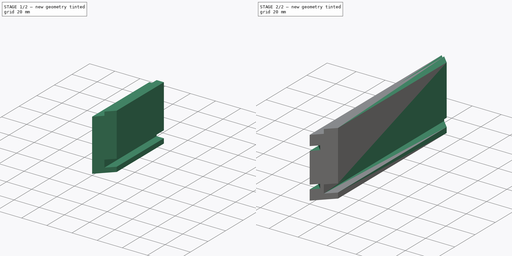
[diagram: build sequence overview — one tinted view per stage of 2, left to right]
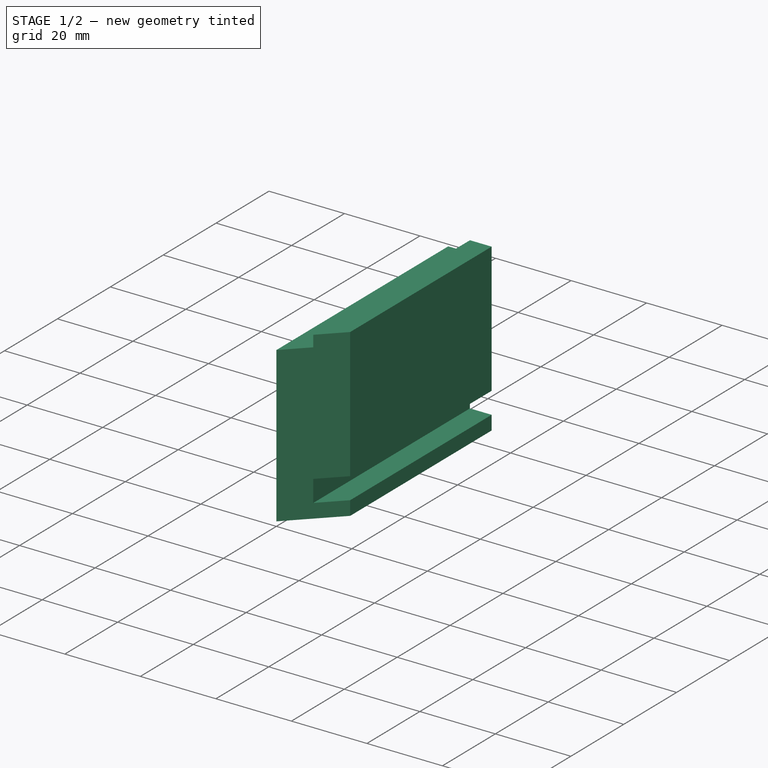
[diagram: stage 1 of 2 — iso view after this stage's code; geometry added in this stage tinted green]
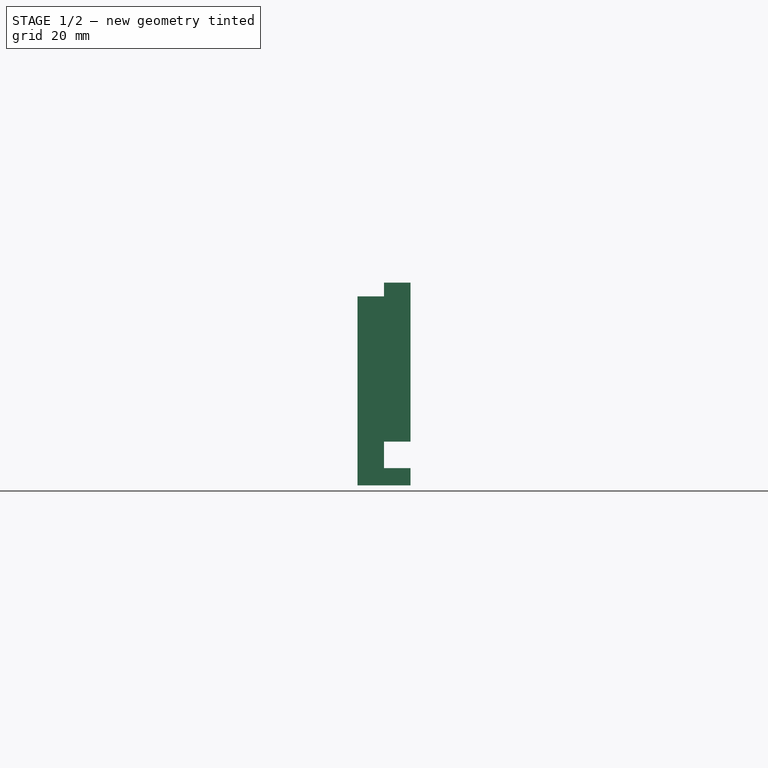
[diagram: stage 1 of 2 — front view after this stage's code; geometry added in this stage tinted green]
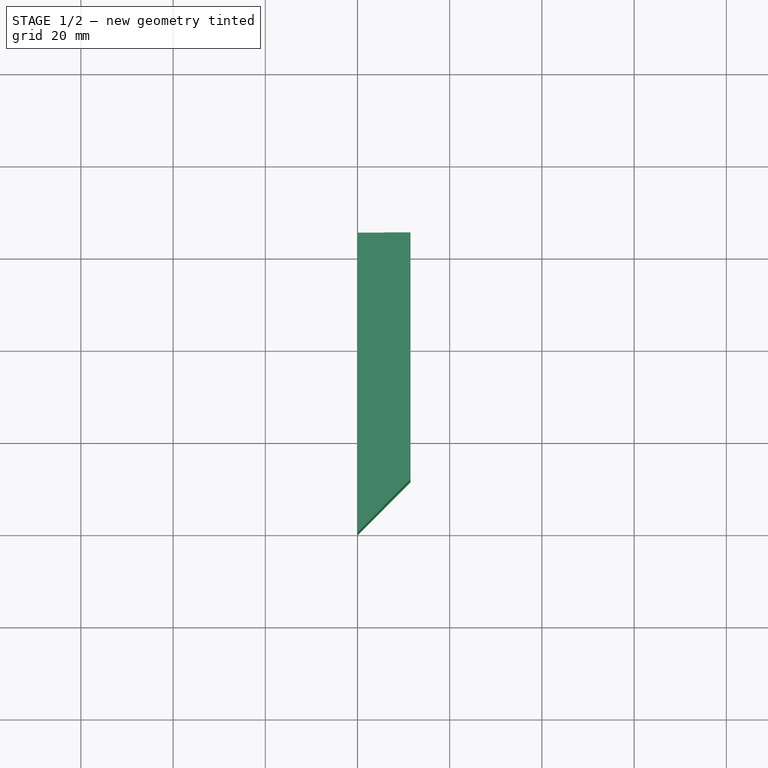
[diagram: stage 1 of 2 — top view after this stage's code; geometry added in this stage tinted green]
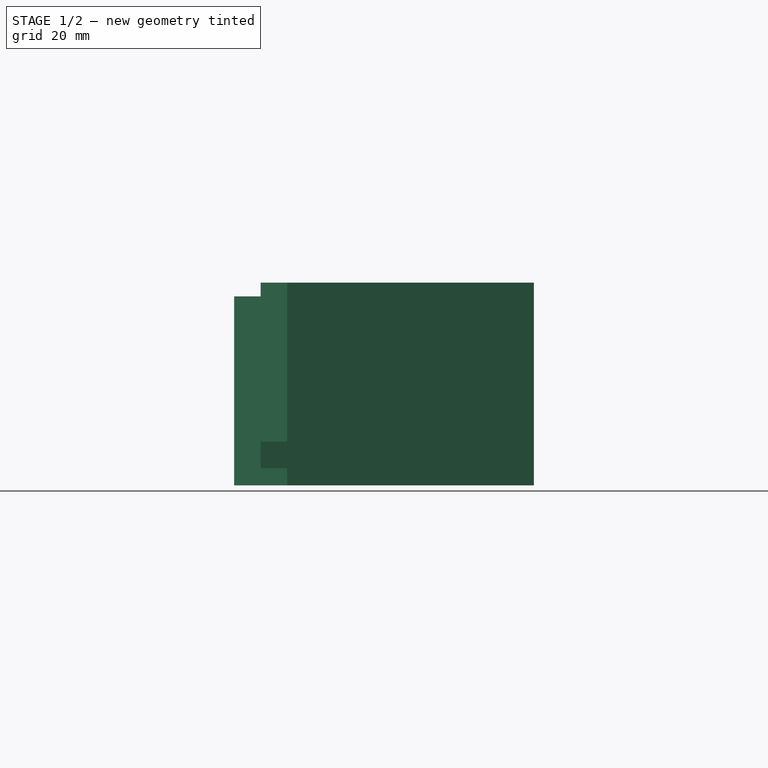
[diagram: stage 1 of 2 — right view after this stage's code; geometry added in this stage tinted green]
FCSTD DOCUMENT  (FreeCAD 0.21R33694 (Git))
Label: kumiko_box_wall_long
License: All rights reserved
LicenseURL: https://en.wikipedia.org/wiki/All_rights_reserved
objects: Sketcher::SketchObject×3, PartDesign::Pocket×2, PartDesign::Pad×1, PartDesign::Mirrored×1, PartDesign::Body×1, App::Link×1
note: 11 computed .brp shape members not serialized (recipe doc carries the construction recipe); baked Part::Feature solids carry a one-line shape summary decoded from their .brp
EXTERNAL_REF file=../../master_kumiko_box.FCStd obj=Spreadsheet

FEATURE [Sketcher::SketchObject] Sketch014  label="profile_drawing"
  FullyConstrained = true
  MapMode = 5
  Placement = pos=(0,0,0) rot=(1,0,0;1.5708rad)
  Support = -> [XZ_Plane009]
  expr: Constraints[12] = <<SpreadSheet>>.box_thickness / 2
  expr: Constraints[24] = <<SpreadSheet>>.box_thickness / 2
  expr: Constraints[25] = <<SpreadSheet>>.lid_lip_hight
  expr: Constraints[26] = <<SpreadSheet>>.box_thickness / 2
  expr: Constraints[27] = <<SpreadSheet>>.box_thickness - <<SpreadSheet>>.floor_edge
  expr: Constraints[28] = <<SpreadSheet>>.box_wall_height
  expr: Constraints[29] = <<SpreadSheet>>.box_thickness
  expr: Constraints[5] = <<SpreadSheet>>.box_thickness
  expr: Constraints[7] = 0
  sketch-geometry (10):
    g0: LineSegment StartX=0 StartY=41 StartZ=0 EndX=0 EndY=0 EndZ=0
    g1: LineSegment StartX=0 StartY=0 StartZ=0 EndX=11.5 EndY=0 EndZ=0
    g2: LineSegment StartX=11.5 StartY=0 StartZ=0 EndX=11.5 EndY=3.75 EndZ=0
    g3: LineSegment StartX=11.5 StartY=3.75 StartZ=0 EndX=5.75 EndY=3.75 EndZ=0
    g4: LineSegment StartX=5.75 StartY=3.75 StartZ=0 EndX=5.75 EndY=9.5 EndZ=0
    g5: LineSegment StartX=5.75 StartY=9.5 StartZ=0 EndX=11.5 EndY=9.5 EndZ=0
    g6: LineSegment StartX=0 StartY=41 StartZ=0 EndX=5.75 EndY=41 EndZ=0
    g7: LineSegment StartX=5.75 StartY=44 StartZ=0 EndX=11.5 EndY=44 EndZ=0
    g8: LineSegment StartX=11.5 StartY=44 StartZ=0 EndX=11.5 EndY=9.5 EndZ=0
    g9: LineSegment StartX=5.75 StartY=44 StartZ=0 EndX=5.75 EndY=41 EndZ=0
  constraints (30):
    c: Vertical(g0)
    c: Coincident(g1,g0)
    c: Horizontal(g1)
    c: Coincident(g2,g1)
    c: Vertical(g2)
    c: DistanceX(g1,g1) = 11.5
    c: DistanceX(g-1,g0) = 0
    c: DistanceY(g0,g-1) = 0
    c: Coincident(g3,g2)
    c: Horizontal(g3)
    c: Coincident(g4,g3)
    c: Vertical(g4)
    c: DistanceY(g4,g4) = 5.75
    c: Coincident(g5,g4)
    c: Horizontal(g5)
    c: Coincident(g6,g0)
    c: Horizontal(g6)
    c: Horizontal(g7)
    c: Coincident(g8,g7)
    c: Coincident(g8,g5)
    c: Vertical(g8)
    c: Coincident(g9,g7)
    c: Coincident(g9,g6)
    c: Vertical(g9)
    c: DistanceX(g7,g7) = 5.75
    c: DistanceY(g9,g9) = 3
    c: DistanceX(g5,g5) = 5.75
    c: DistanceY(g1,g5) = 9.5
    c: DistanceY(g0,g0) = 41
    c: DistanceX(g0,g7) = 11.5
FEATURE [PartDesign::Pad] Pad007  label="wall_profile_extrusion"
  Direction = (0,-1,-2e-16)
  Length = 65
  Length2 = 10
  Placement = pos=(0,0,0) rot=(1,0,0;1.5708rad)
  Profile = -> Sketch014
  ReferenceAxis = -> Sketch014 [N_Axis]
  Reversed = true
  Type = 0
  expr: Length = <<SpreadSheet>>.box_length / 2
FEATURE [Sketcher::SketchObject] Sketch015  label="miter_drawing"
  FullyConstrained = true
  MapMode = 5
  Placement = pos=(0,0,0) rot=(1,0,0;3.14159rad)
  Support = -> [Pad007]
  expr: Constraints[4] = <<SpreadSheet>>.box_thickness
  expr: Constraints[7] = <<SpreadSheet>>.box_thickness
  sketch-geometry (3):
    g0: LineSegment StartX=0 StartY=0 StartZ=0 EndX=11.5 EndY=0 EndZ=0
    g1: LineSegment StartX=11.5 StartY=0 StartZ=0 EndX=11.5 EndY=-11.5 EndZ=0
    g2: LineSegment StartX=0 StartY=0 StartZ=0 EndX=11.5 EndY=-11.5 EndZ=0
  constraints (8):
    c: Coincident(g0,g-1)
    c: PointOnObject(g0,g-1)
    c: Coincident(g1,g0)
    c: Vertical(g1)
    c: DistanceX(g0,g0) = 11.5
    c: Coincident(g2,g0)
    c: Coincident(g2,g1)
    c: DistanceY(g1,g0) = 11.5
FEATURE [PartDesign::Pocket] Pocket006  label="miter_cut"
  BaseFeature = -> Pad007
  Direction = (0,-2e-16,1)
  Length = 60
  Length2 = 5
  Placement = pos=(0,0,0) rot=(1,0,0;1.5708rad)
  Profile = -> Sketch015
  ReferenceAxis = -> Sketch015 [N_Axis]
  Type = 0
  expr: Length = <<SpreadSheet>>.box_height
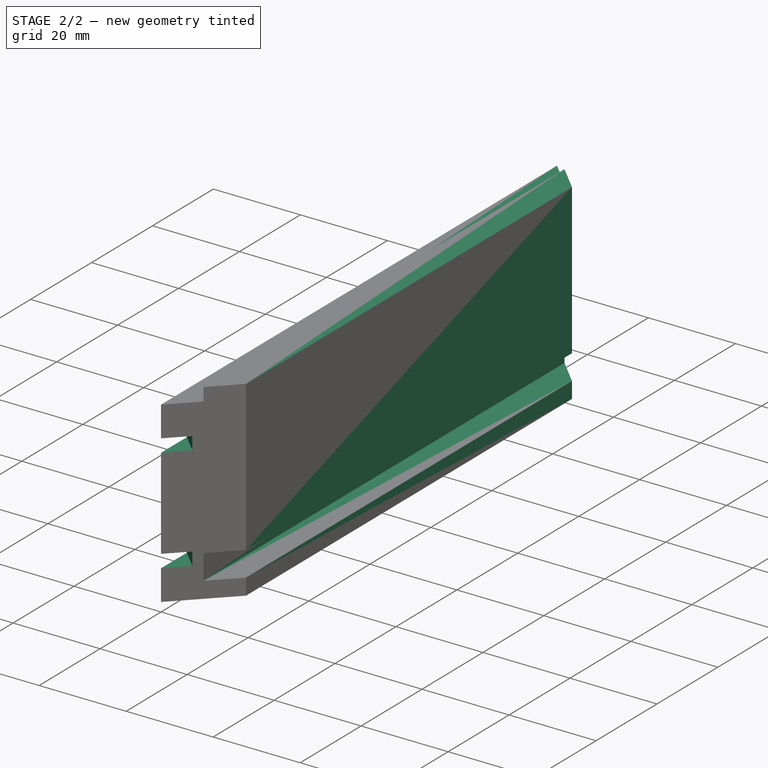
[diagram: stage 2 of 2 — iso view after this stage's code; geometry added in this stage tinted green]
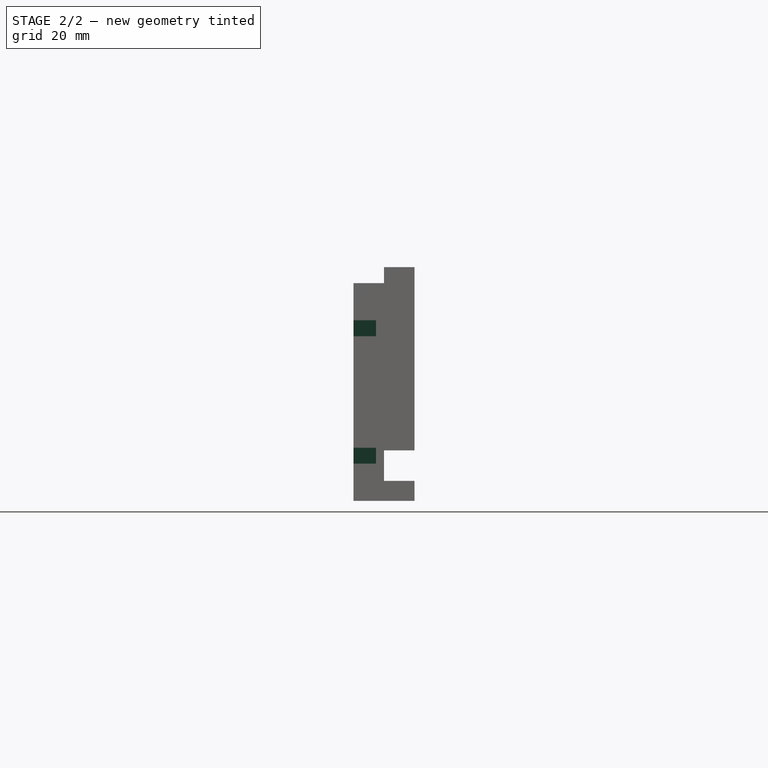
[diagram: stage 2 of 2 — front view after this stage's code; geometry added in this stage tinted green]
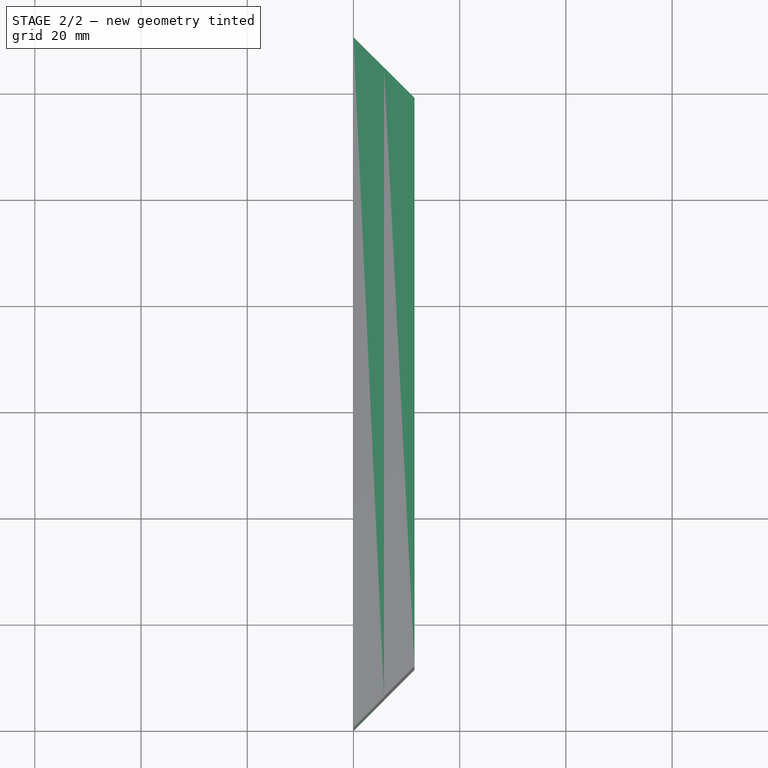
[diagram: stage 2 of 2 — top view after this stage's code; geometry added in this stage tinted green]
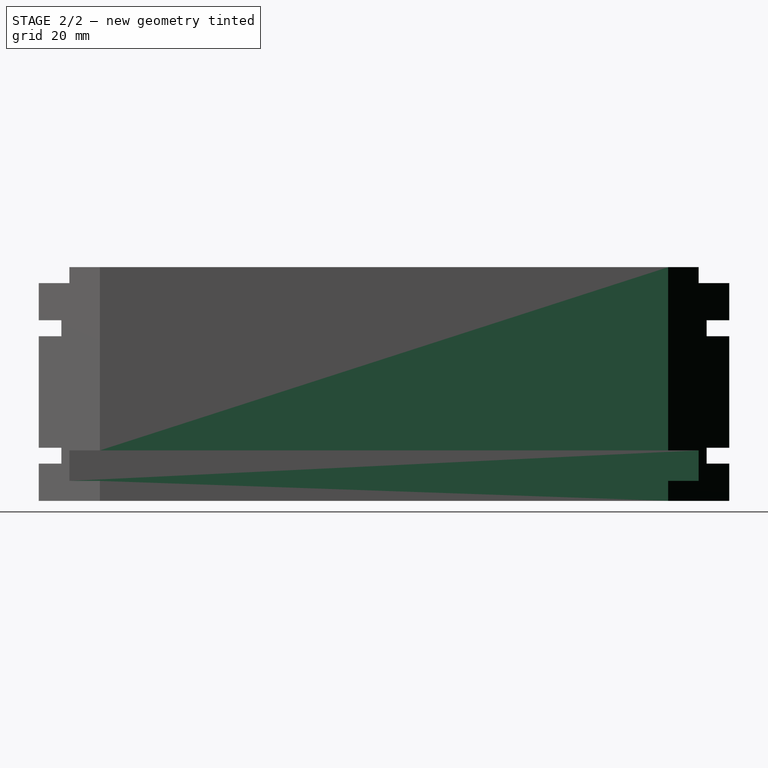
[diagram: stage 2 of 2 — right view after this stage's code; geometry added in this stage tinted green]
FEATURE [Sketcher::SketchObject] Sketch016  label="miter_key_drawing"
  FullyConstrained = true
  MapMode = 5
  Placement = pos=(0,0,0) rot=(0.678598,-0.281085,0.678598;2.59356rad)
  Support = -> [Pocket006]
  expr: Constraints[10] = <<SpreadSheet>>.lid_frame_width * sqrt(2) / 2
  expr: Constraints[19] = -(<<SpreadSheet>>.lid_height / 2 + <<SpreadSheet>>.kumiko_thickness / 2)
  expr: Constraints[20] = -(<<SpreadSheet>>.box_wall_height - <<SpreadSheet>>.lid_height / 2 - <<SpreadSheet>>.kumiko_thickness / 2)
  expr: Constraints[21] = -(<<SpreadSheet>>.box_wall_height - <<SpreadSheet>>.lid_height / 2 + <<SpreadSheet>>.kumiko_thickness / 2)
  expr: Constraints[8] = -(<<SpreadSheet>>.lid_height / 2 - <<SpreadSheet>>.kumiko_thickness / 2)
  sketch-geometry (8):
    g0: LineSegment StartX=10 StartY=-6.01041 StartZ=0 EndX=7 EndY=-6.01041 EndZ=0
    g1: LineSegment StartX=7 StartY=-6.01041 StartZ=0 EndX=7 EndY=0 EndZ=0
    g2: LineSegment StartX=7 StartY=0 StartZ=0 EndX=10 EndY=0 EndZ=0
    g3: LineSegment StartX=10 StartY=0 StartZ=0 EndX=10 EndY=-6.01041 EndZ=0
    g4: LineSegment StartX=31 StartY=-6.01041 StartZ=0 EndX=34 EndY=-6.01041 EndZ=0
    g5: LineSegment StartX=34 StartY=-6.01041 StartZ=0 EndX=34 EndY=0 EndZ=0
    g6: LineSegment StartX=34 StartY=0 StartZ=0 EndX=31 EndY=0 EndZ=0
    g7: LineSegment StartX=31 StartY=0 StartZ=0 EndX=31 EndY=-6.01041 EndZ=0
  constraints (24):
    c: Coincident(g0,g1)
    c: Coincident(g1,g2)
    c: Coincident(g2,g3)
    c: Coincident(g3,g0)
    c: Horizontal(g0)
    c: Horizontal(g2)
    c: Vertical(g1)
    c: Vertical(g3)
    c: DistanceX(g1,g-1) = -7
    c: DistanceY(g1,g-1) = 0
    c: DistanceY(g3,g3) = 6.01041
    c: Coincident(g4,g5)
    c: Coincident(g5,g6)
    c: Coincident(g6,g7)
    c: Coincident(g7,g4)
    c: Horizontal(g4)
    c: Horizontal(g6)
    c: Vertical(g5)
    c: Vertical(g7)
    c: DistanceX(g2,g-1) = -10
    c: DistanceX(g6,g-1) = -31
    c: DistanceX(g5,g-1) = -34
    c: Equal(g3,g7)
    c: DistanceY(g6,g-1) = 0
FEATURE [PartDesign::Pocket] Pocket007  label="miter_key_slot"
  BaseFeature = -> Pocket006
  Direction = (-0.707107,0.707107,1e-16)
  Length = 5
  Length2 = 5
  Placement = pos=(0,0,0) rot=(1,0,0;1.5708rad)
  Profile = -> Sketch016
  ReferenceAxis = -> Sketch016 [N_Axis]
  Type = 1
FEATURE [PartDesign::Mirrored] Mirrored003  label="wall_mirror"
  BaseFeature = -> Pocket007
  MirrorPlane = -> Pocket007 [Face4]
  Originals = -> [Pad007,Pocket006,Pocket007]
  Placement = pos=(0,0,0) rot=(1,0,0;1.5708rad)
  Refine = true
FEATURE [PartDesign::Body] Body009  label="wall_long_body"
  Group = -> [Sketch014,Pad007,Sketch015,Pocket006,Sketch016,Pocket007,Mirrored003]
  Origin = -> Origin009
  Placement = pos=(130,0,0) rot=(0,0,1;1.5708rad)
  Tip = -> Mirrored003
  expr: .Placement.Base.x = <<SpreadSheet>>.box_length
  expr: .Placement.Rotation.Angle = 90
FEATURE [App::Link] Link  label="SpreadSheet"
  LinkedObject = -> <external ../../master_kumiko_box.FCStd>#Spreadsheet
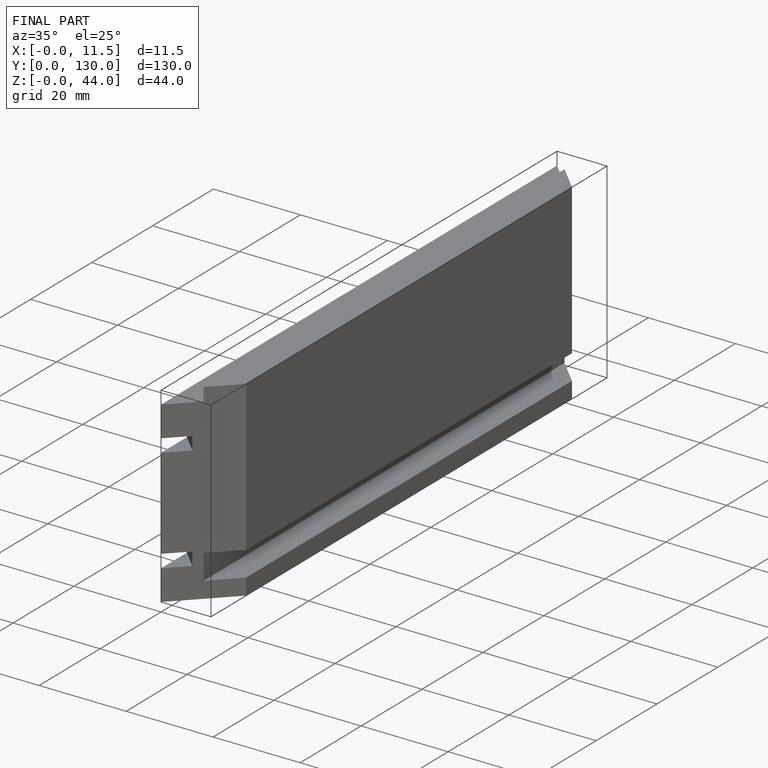
[diagram: finished part — iso view with bounding-box wireframe]
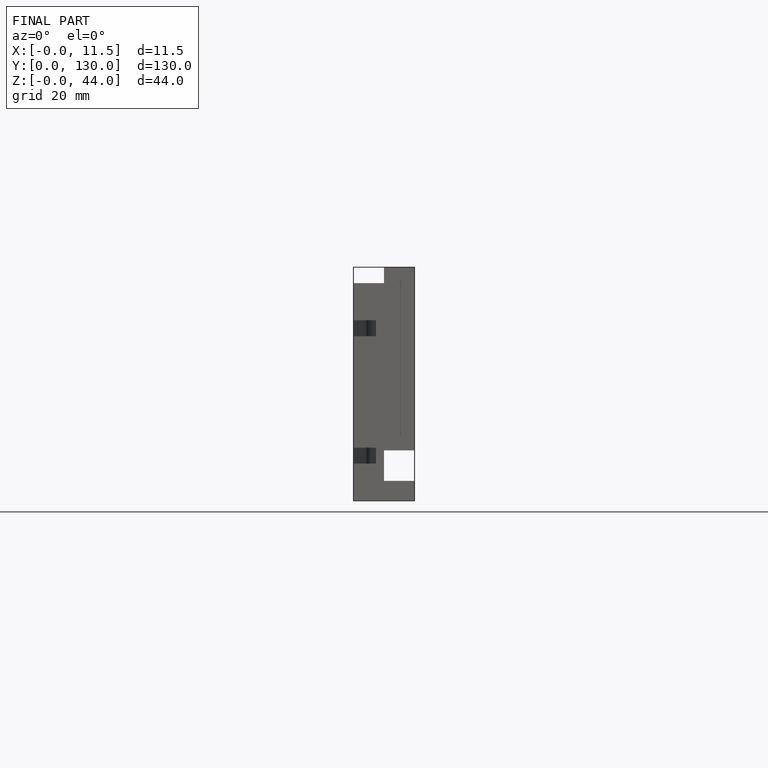
[diagram: finished part — front view with bounding-box wireframe]
